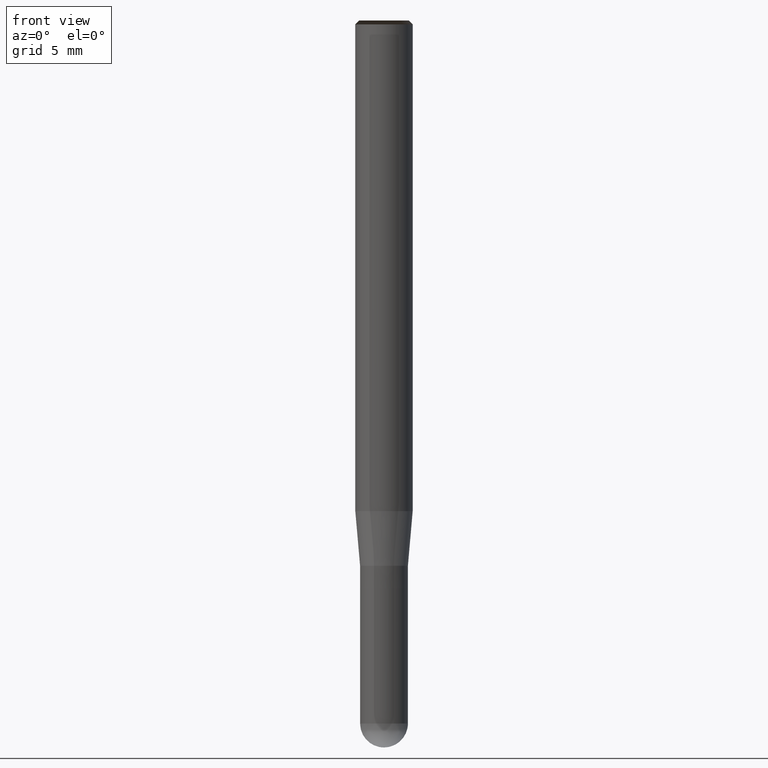
[diagram: clean part render]
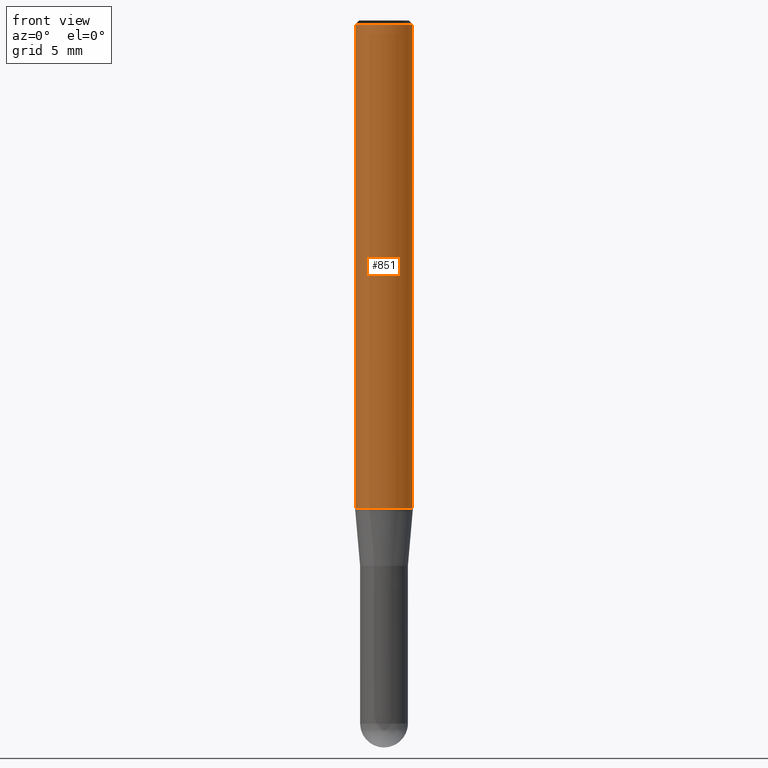
[diagram: same view with one face highlighted and labeled with its STEP entity id]
A machine part, front view. The second image highlights one B-rep face of the part: STEP entity #851.
In plain terms, the highlighted face is a freeform B-spline surface patch.
Its self-contained STEP definition (entity closure, byte-faithful):
#480=CARTESIAN_POINT('',(1.5,0.0,0.0));
#484=CARTESIAN_POINT('',(-1.5,0.0,0.0));
#485=CARTESIAN_POINT('',(1.5,0.0,25.3));
#489=CARTESIAN_POINT('',(-1.5,0.0,25.3));
#502=CARTESIAN_POINT('',(-1.5,-1.5,0.0));
#503=CARTESIAN_POINT('',(0.0,-1.5,0.0));
#504=CARTESIAN_POINT('',(1.5,-1.5,0.0));
#505=CARTESIAN_POINT('',(-1.5,-1.5,25.3));
#506=CARTESIAN_POINT('',(0.0,-1.5,25.3));
#507=CARTESIAN_POINT('',(1.5,-1.5,25.3));
#832=(
BOUNDED_SURFACE()
B_SPLINE_SURFACE(1,2,(
(#484,#502,#503,#504,#480),
(#489,#505,#506,#507,#485)
), .UNSPECIFIED.,.F.,.F.,.F.)
B_SPLINE_SURFACE_WITH_KNOTS((2,2),(3,2,3),(
0.0,1.0),(
0.0,0.5,1.0), .UNSPECIFIED.)
GEOMETRIC_REPRESENTATION_ITEM()
RATIONAL_B_SPLINE_SURFACE(((1.0,0.707106781187,1.0,0.707106781187,1.0),
(1.0,0.707106781187,1.0,0.707106781187,1.0)
))
REPRESENTATION_ITEM('')
SURFACE()
);
#833=(
BOUNDED_CURVE()
B_SPLINE_CURVE(2,(#480,#504,#503,#502,#484),.UNSPECIFIED.,.F.,.F.)
B_SPLINE_CURVE_WITH_KNOTS((3,2,3),
(0.0,0.5,1.0),.UNSPECIFIED.)
CURVE()
GEOMETRIC_REPRESENTATION_ITEM()
RATIONAL_B_SPLINE_CURVE((1.0,0.707106781187,1.0,0.707106781187,1.0))
REPRESENTATION_ITEM('')
);
#834=(
BOUNDED_CURVE()
B_SPLINE_CURVE(1,(#484,#489),.UNSPECIFIED.,.F.,.F.)
B_SPLINE_CURVE_WITH_KNOTS((2,2),
(0.0,1.0),.UNSPECIFIED.)
CURVE()
GEOMETRIC_REPRESENTATION_ITEM()
RATIONAL_B_SPLINE_CURVE((1.0,1.0))
REPRESENTATION_ITEM('')
);
#835=(
BOUNDED_CURVE()
B_SPLINE_CURVE(2,(#489,#505,#506,#507,#485),.UNSPECIFIED.,.F.,.F.)
B_SPLINE_CURVE_WITH_KNOTS((3,2,3),
(0.0,0.5,1.0),.UNSPECIFIED.)
CURVE()
GEOMETRIC_REPRESENTATION_ITEM()
RATIONAL_B_SPLINE_CURVE((1.0,0.707106781187,1.0,0.707106781187,1.0))
REPRESENTATION_ITEM('')
);
#836=(
BOUNDED_CURVE()
B_SPLINE_CURVE(1,(#485,#480),.UNSPECIFIED.,.F.,.F.)
B_SPLINE_CURVE_WITH_KNOTS((2,2),
(0.0,1.0),.UNSPECIFIED.)
CURVE()
GEOMETRIC_REPRESENTATION_ITEM()
RATIONAL_B_SPLINE_CURVE((1.0,1.0))
REPRESENTATION_ITEM('')
);
#837=VERTEX_POINT('',#480);
#838=VERTEX_POINT('',#484);
#839=VERTEX_POINT('',#485);
#840=VERTEX_POINT('',#489);
#841=EDGE_CURVE('',#837,#838,#833,.T.);
#842=EDGE_CURVE('',#838,#840,#834,.T.);
#843=EDGE_CURVE('',#840,#839,#835,.T.);
#844=EDGE_CURVE('',#839,#837,#836,.T.);
#845=ORIENTED_EDGE('',*,*,#841,.T.);
#846=ORIENTED_EDGE('',*,*,#842,.T.);
#847=ORIENTED_EDGE('',*,*,#843,.T.);
#848=ORIENTED_EDGE('',*,*,#844,.T.);
#849=EDGE_LOOP('',(#845,#846,#847,#848));
#850=FACE_OUTER_BOUND('',#849,.T.);
#851=ADVANCED_FACE('',(#850),#832,.T.);